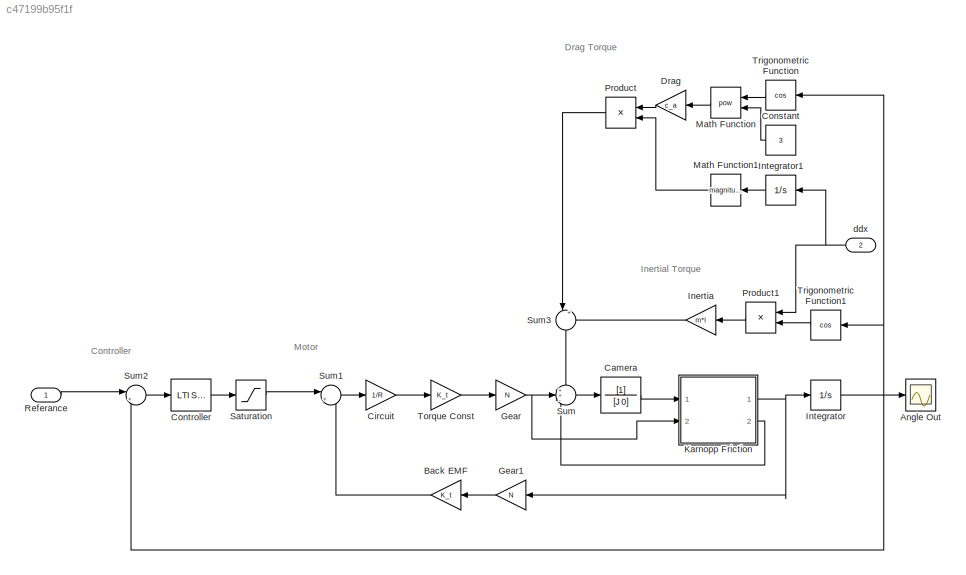
MODEL slx_c47199b95f1f
KIND model
CONFIG AbsTol = auto
CONFIG EnableMultiTasking = off
CONFIG FixedStep = auto
CONFIG MaxStep = auto
CONFIG MinStep = auto
CONFIG RelTol = 1e-3
CONFIG SampleTimeConstraint = Unconstrained
CONFIG Solver = VariableStepAuto
CONFIG SolverName = VariableStepAuto
CONFIG StartTime = 0.0
CONFIG StopTime = 10.0
BLOCK [Scope] Angle Out
  NumInputPorts = 1
  Ports = [1]
  ScopeSpecificationString = C++SS(StrPVP('SaveName','ScopeData'))
BLOCK [Gain] Back EMF
  Gain = K_t
  OutDataTypeStr = Inherit: Inherit via internal rule
  ParamDataTypeStr = Inherit: Inherit via internal rule
  SaturateOnIntegerOverflow = off
BLOCK [TransferFcn] Camera
  Denominator = [J 0]
BLOCK [Gain] Circuit
  Gain = 1/R
  OutDataTypeStr = Inherit: Inherit via internal rule
  ParamDataTypeStr = Inherit: Inherit via internal rule
  SaturateOnIntegerOverflow = off
BLOCK [Constant] Constant
  Value = 3
BLOCK [Reference] Controller  REF=cstblocks/LTI System
  Ports = [1, 1]
  SourceBlock = cstblocks/LTI System
  SourceType = LTI Block
BLOCK [Gain] Drag
  Gain = c_a
  OutDataTypeStr = Inherit: Inherit via internal rule
  ParamDataTypeStr = Inherit: Inherit via internal rule
  SaturateOnIntegerOverflow = off
BLOCK [Gain] Gear
  Gain = N
  OutDataTypeStr = Inherit: Inherit via internal rule
  ParamDataTypeStr = Inherit: Inherit via internal rule
  SaturateOnIntegerOverflow = off
BLOCK [Gain] Gear1
  Gain = N
  OutDataTypeStr = Inherit: Inherit via internal rule
  ParamDataTypeStr = Inherit: Inherit via internal rule
  SaturateOnIntegerOverflow = off
BLOCK [Gain] Inertia
  Gain = m*l
  OutDataTypeStr = Inherit: Inherit via internal rule
  ParamDataTypeStr = Inherit: Inherit via internal rule
  SaturateOnIntegerOverflow = off
BLOCK [Integrator] Integrator
  Ports = [1, 1]
BLOCK [Integrator] Integrator1
  Ports = [1, 1]
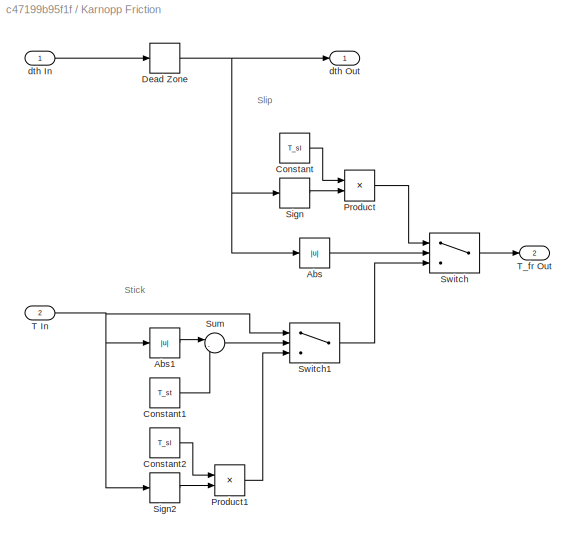
BLOCK [SubSystem] Karnopp Friction
  Ports = [2, 2]
  RequestExecContextInheritance = off
  Variant = off
BLOCK [Abs] Karnopp Friction/Abs
  SaturateOnIntegerOverflow = off
BLOCK [Abs] Karnopp Friction/Abs1
  SaturateOnIntegerOverflow = off
BLOCK [Constant] Karnopp Friction/Constant
  Value = T_sl
BLOCK [Constant] Karnopp Friction/Constant1
  Value = T_st
BLOCK [Constant] Karnopp Friction/Constant2
  Value = T_sl
BLOCK [DeadZone] Karnopp Friction/Dead Zone
  LowerValue = -D_v/2
  UpperValue = D_v/2
BLOCK [Product] Karnopp Friction/Product
  InputSameDT = off
  OutDataTypeStr = Inherit: Inherit via internal rule
  Ports = [2, 1]
  RndMeth = Floor
  SaturateOnIntegerOverflow = off
BLOCK [Product] Karnopp Friction/Product1
  InputSameDT = off
  OutDataTypeStr = Inherit: Inherit via internal rule
  Ports = [2, 1]
  RndMeth = Floor
  SaturateOnIntegerOverflow = off
BLOCK [Signum] Karnopp Friction/Sign
BLOCK [Signum] Karnopp Friction/Sign2
BLOCK [Sum] Karnopp Friction/Sum
  IconShape = round
  InputSameDT = off
  Inputs = |-+
  OutDataTypeStr = Inherit: Inherit via internal rule
  Ports = [2, 1]
  SaturateOnIntegerOverflow = off
BLOCK [Switch] Karnopp Friction/Switch
  Criteria = u2 > Threshold
  InputSameDT = off
  SaturateOnIntegerOverflow = off
BLOCK [Switch] Karnopp Friction/Switch1
  Criteria = u2 > Threshold
  InputSameDT = off
  SaturateOnIntegerOverflow = off
BLOCK [Inport] Karnopp Friction/T In
  IconDisplay = Port number
  Port = 2
BLOCK [Outport] Karnopp Friction/T_fr Out
  IconDisplay = Port number
  Port = 2
BLOCK [Inport] Karnopp Friction/dth In
  IconDisplay = Port number
BLOCK [Outport] Karnopp Friction/dth Out
  IconDisplay = Port number
BLOCK [Math] Math Function
  Operator = pow
  Ports = [2, 1]
BLOCK [Math] Math Function1
  Operator = magnitude^2
  Ports = [1, 1]
BLOCK [Product] Product
  InputSameDT = off
  OutDataTypeStr = Inherit: Inherit via internal rule
  Ports = [2, 1]
  RndMeth = Floor
  SaturateOnIntegerOverflow = off
BLOCK [Product] Product1
  InputSameDT = off
  OutDataTypeStr = Inherit: Inherit via internal rule
  Ports = [2, 1]
  RndMeth = Floor
  SaturateOnIntegerOverflow = off
BLOCK [Inport] Referance
  IconDisplay = Port number
BLOCK [Saturate] Saturation
  InputPortMap = u0
  LowerLimit = -V_max
  Ports = [1, 1]
  UpperLimit = V_max
BLOCK [Sum] Sum
  IconShape = round
  InputSameDT = off
  Inputs = ++-
  OutDataTypeStr = Inherit: Inherit via internal rule
  Ports = [3, 1]
  SaturateOnIntegerOverflow = off
BLOCK [Sum] Sum1
  IconShape = round
  InputSameDT = off
  Inputs = |+-
  OutDataTypeStr = Inherit: Inherit via internal rule
  Ports = [2, 1]
  SaturateOnIntegerOverflow = off
BLOCK [Sum] Sum2
  IconShape = round
  InputSameDT = off
  Inputs = |+-
  OutDataTypeStr = Inherit: Inherit via internal rule
  Ports = [2, 1]
  SaturateOnIntegerOverflow = off
BLOCK [Sum] Sum3
  IconShape = round
  InputSameDT = off
  Inputs = |++
  OutDataTypeStr = Inherit: Inherit via internal rule
  Ports = [2, 1]
  SaturateOnIntegerOverflow = off
BLOCK [Gain] Torque Const
  Gain = K_t
  OutDataTypeStr = Inherit: Inherit via internal rule
  ParamDataTypeStr = Inherit: Inherit via internal rule
  SaturateOnIntegerOverflow = off
BLOCK [Trigonometry] Trigonometric Function
  Operator = cos
  Ports = [1, 1]
BLOCK [Trigonometry] Trigonometric Function1
  Operator = cos
  Ports = [1, 1]
BLOCK [Inport] ddx
  IconDisplay = Port number
  Port = 2
ANNOTATION (root): Controller
ANNOTATION (root): Drag Torque
ANNOTATION (root): Inertial Torque
ANNOTATION (root): Motor
ANNOTATION Karnopp Friction: Slip
ANNOTATION Karnopp Friction: Stick
LINE Back EMF:1 -> Sum1:2
LINE Camera:1 -> Karnopp Friction:1
LINE Circuit:1 -> Torque Const:1
LINE Constant:1 -> Math Function:2
LINE Controller:1 -> Saturation:1
LINE Drag:1 -> Product:1
LINE Gear1:1 -> Back EMF:1
NET Gear:1 -> Karnopp Friction:2, Sum:2
LINE Inertia:1 -> Sum3:2
LINE Integrator1:1 -> Math Function1:1
NET Integrator:1 -> Angle Out:1, Sum2:2, Trigonometric Function1:1, Trigonometric Function:1
LINE Karnopp Friction/Abs1:1 -> Karnopp Friction/Sum:1
LINE Karnopp Friction/Abs:1 -> Karnopp Friction/Switch:2
LINE Karnopp Friction/Constant1:1 -> Karnopp Friction/Sum:2
LINE Karnopp Friction/Constant2:1 -> Karnopp Friction/Product1:1
LINE Karnopp Friction/Constant:1 -> Karnopp Friction/Product:1
NET Karnopp Friction/Dead Zone:1 -> Karnopp Friction/Abs:1, Karnopp Friction/Sign:1, Karnopp Friction/dth Out:1
LINE Karnopp Friction/Product1:1 -> Karnopp Friction/Switch1:3
LINE Karnopp Friction/Product:1 -> Karnopp Friction/Switch:1
LINE Karnopp Friction/Sign2:1 -> Karnopp Friction/Product1:2
LINE Karnopp Friction/Sign:1 -> Karnopp Friction/Product:2
LINE Karnopp Friction/Sum:1 -> Karnopp Friction/Switch1:2
LINE Karnopp Friction/Switch1:1 -> Karnopp Friction/Switch:3
LINE Karnopp Friction/Switch:1 -> Karnopp Friction/T_fr Out:1
NET Karnopp Friction/T In:1 -> Karnopp Friction/Abs1:1, Karnopp Friction/Sign2:1, Karnopp Friction/Switch1:1
LINE Karnopp Friction/dth In:1 -> Karnopp Friction/Dead Zone:1
NET Karnopp Friction:1 -> Gear1:1, Integrator:1
LINE Karnopp Friction:2 -> Sum:3
LINE Math Function1:1 -> Product:2
LINE Math Function:1 -> Drag:1
LINE Product1:1 -> Inertia:1
LINE Product:1 -> Sum3:1
LINE Referance:1 -> Sum2:1
LINE Saturation:1 -> Sum1:1
LINE Sum1:1 -> Circuit:1
LINE Sum2:1 -> Controller:1
LINE Sum3:1 -> Sum:1
LINE Sum:1 -> Camera:1
LINE Torque Const:1 -> Gear:1
LINE Trigonometric Function1:1 -> Product1:2
LINE Trigonometric Function:1 -> Math Function:1
NET ddx:1 -> Integrator1:1, Product1:1
note: NET lines group one-source signal fan-out (src -> all destinations, sorted); 1:1 wires keep LINE
